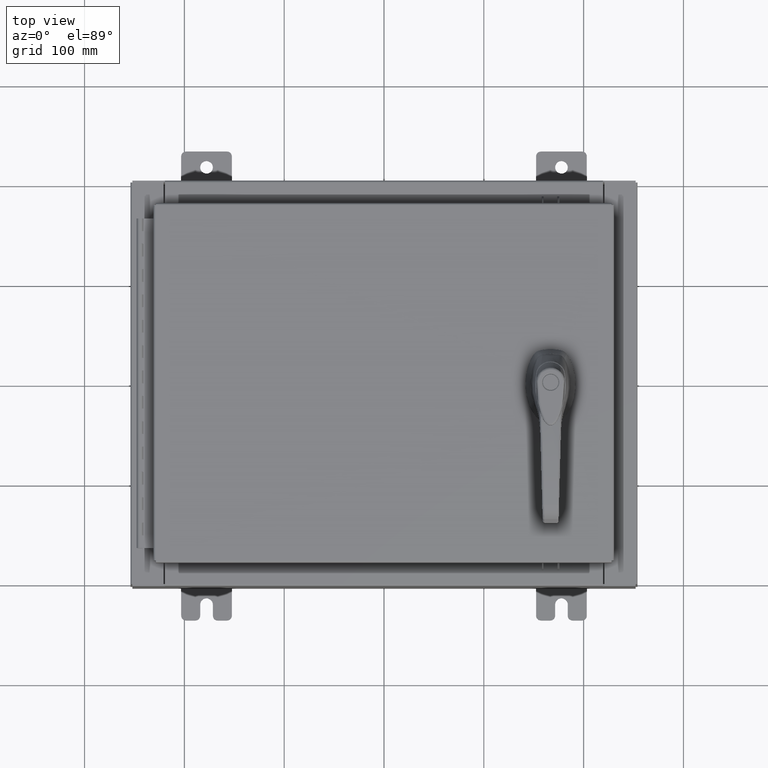
[diagram: clean part render]
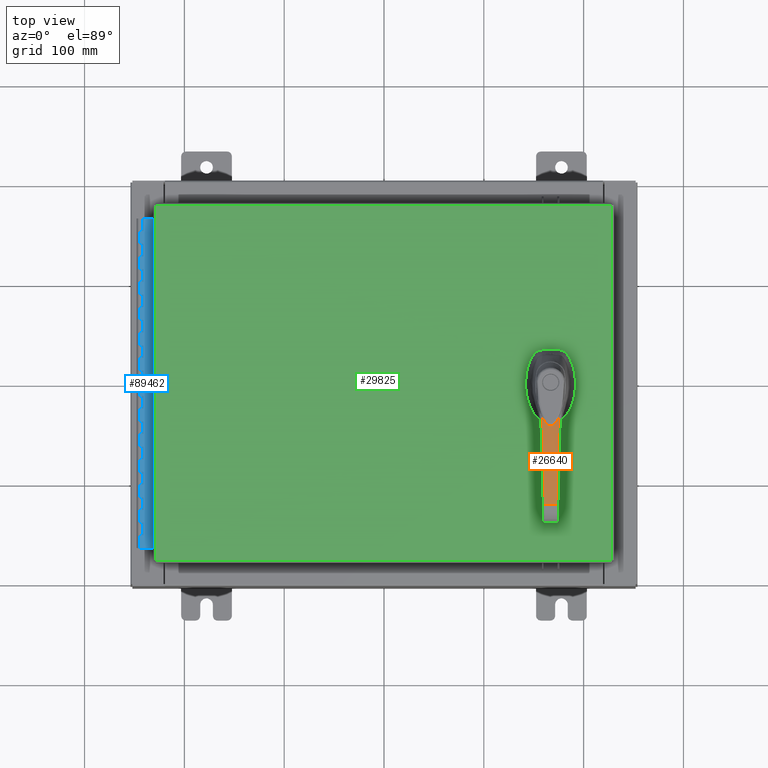
[diagram: same view with three faces highlighted in distinct colors, each labeled with its STEP entity id]
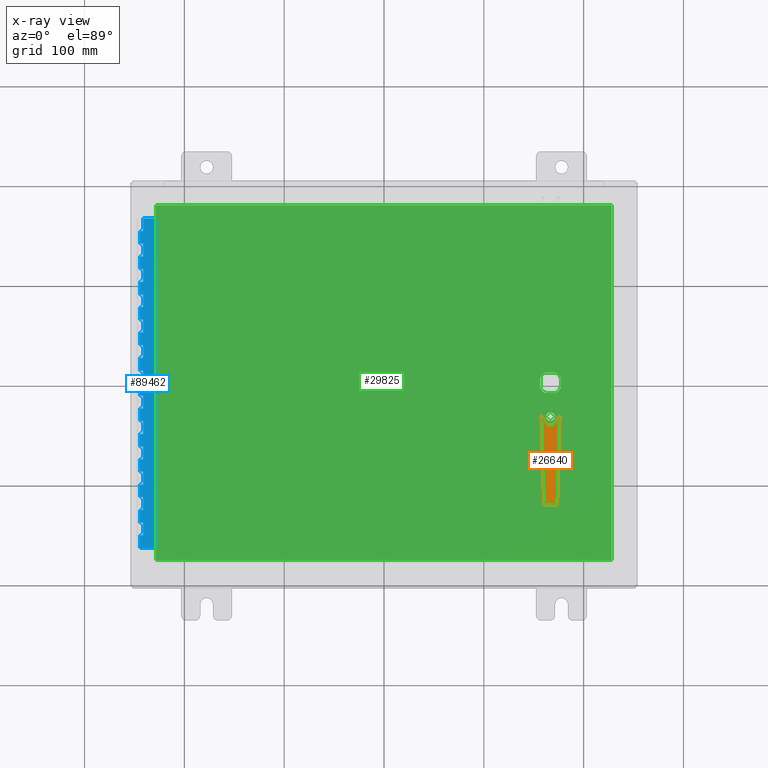
[diagram: x-ray of the same camera — body ghosted, the three highlighted faces saturated]
A machine part, top view with three faces highlighted in distinct colors.
The next image is the same camera in x-ray (body ghosted, the three faces saturated) — at least one of them is partly hidden behind the body in this view.
Their STEP definitions:

[orange] entity #26640 — the highlighted cylindrical surface (partial cylindrical patch) has radius 300 mm, axis along (-1, 0, 0).
#307 = LINE ( 'NONE', #32113, #84695 ) ;
#2828 = CARTESIAN_POINT ( 'NONE',  ( 1.549936709521860800, -0.3396595521461221500, 1.832114909085235300 ) ) ;
#3968 = CARTESIAN_POINT ( 'NONE',  ( 3.354255696629973000, 0.2927274858646592400, 1.939252233246037600 ) ) ;
#4312 = CARTESIAN_POINT ( 'NONE',  ( 1.962192344927163400, 0.3289308373534590700, 1.881644855761424700 ) ) ;
#5844 = CARTESIAN_POINT ( 'NONE',  ( 1.456517634884649400, 0.2752119614751078500, 1.818981777874292700 ) ) ;
#6196 = CARTESIAN_POINT ( 'NONE',  ( 1.609689720394137200, 0.1588428430745516000, 1.840131652460306400 ) ) ;
#6535 = CARTESIAN_POINT ( 'NONE',  ( 1.665449941461016900, 0.07307405170699375600, 1.847325382728704800 ) ) ;
#6874 = CARTESIAN_POINT ( 'NONE',  ( 1.667452722112527900, -0.06791437558086768600, 1.847578869016391200 ) ) ;
#7226 = CARTESIAN_POINT ( 'NONE',  ( 1.605775901944861400, -0.1635624813666050300, 1.839624697243178200 ) ) ;
#7582 = CARTESIAN_POINT ( 'NONE',  ( 1.450862142650996700, -0.2781988563434895100, 1.818152528769768600 ) ) ;
#10137 = ORIENTED_EDGE ( 'NONE', *, *, #102932, .T. ) ;
#10775 = CARTESIAN_POINT ( 'NONE',  ( 1.285167405151900200, -0.3546133440856402700, 1.792860362220502600 ) ) ;
#10920 = B_SPLINE_CURVE_WITH_KNOTS ( 'NONE', 3,
 ( #14469, #22689, #47440, #104619 ),
 .UNSPECIFIED., .F., .F.,
 ( 4, 4 ),
 ( 0.0000000000000000000, 1.000000000000000000 ),
 .UNSPECIFIED. ) ;
#11436 = EDGE_CURVE ( 'NONE', #23765, #92155, #22117, .T. ) ;
#12139 = CARTESIAN_POINT ( 'NONE',  ( 3.255921162986638300, 0.2952847344197944700, 1.940502775483815600 ) ) ;
#12519 = CARTESIAN_POINT ( 'NONE',  ( 1.638260262526217000, 0.3373621368790621900, 1.844188585699163800 ) ) ;
#13694 = CARTESIAN_POINT ( 'NONE',  ( 1.285167403707585300, 0.3546133445978453800, 1.792860362760508000 ) ) ;
#14053 = CARTESIAN_POINT ( 'NONE',  ( 1.500882007459669400, 0.2481468865976230200, 1.825310919166957200 ) ) ;
#14383 = AXIS2_PLACEMENT_3D ( 'NONE', #85575, #101667, #93811 ) ;
#14395 = CARTESIAN_POINT ( 'NONE',  ( 1.627642221730817300, 0.1372262118340457400, 1.842474734026384500 ) ) ;
#14469 = CARTESIAN_POINT ( 'NONE',  ( 1.549936709521860800, -0.3396595521461221500, 1.832114909085235300 ) ) ;
#14751 = CARTESIAN_POINT ( 'NONE',  ( 1.666720180148481200, 0.06983946041972280400, 1.847486187034457700 ) ) ;
#15108 = CARTESIAN_POINT ( 'NONE',  ( 1.662946339963039100, -0.07969119123599187300, 1.847008659323601900 ) ) ;
#15463 = CARTESIAN_POINT ( 'NONE',  ( 1.567082441918983000, -0.1995284965863674500, 1.834452944274883600 ) ) ;
#15784 = CARTESIAN_POINT ( 'NONE',  ( 1.422341089794108900, -0.2934036132516507100, 1.813963700160028600 ) ) ;
#16957 = CARTESIAN_POINT ( 'NONE',  ( 4.805199877897496900, 0.2549857665720962600, 1.824333981427789200 ) ) ;
#18877 = CARTESIAN_POINT ( 'NONE',  ( 4.266296091497493700, -0.2690033809075386100, 1.900627307953364700 ) ) ;
#20367 = CARTESIAN_POINT ( 'NONE',  ( 3.197470930382345000, 0.2968049740498418500, 1.940850218433535700 ) ) ;
#21914 = CARTESIAN_POINT ( 'NONE',  ( 1.377774985390543000, 0.3154086851259959000, 1.807295794097437900 ) ) ;
#22117 = B_SPLINE_CURVE_WITH_KNOTS ( 'NONE', 3,
 ( #13694, #87033, #102430, #70935, #21914, #79170, #30150, #87369, #38441, #95622, #46640, #103829, #54877, #5844, #63075, #14053, #71302, #22244, #79505, #30531, #87731, #38780, #95963, #46999, #104175, #55236, #6196, #63429, #14395, #71661, #22607, #79844, #30878, #88083, #39128, #96309, #47360, #104545, #55568, #6535, #63789, #14751, #71997, #22963, #80204, #31217, #88445, #39479, #96668, #47717, #104890, #55917, #6874, #64144, #15108, #72344, #23309, #80558, #31570, #88782, #39832, #97026, #48050, #105231, #56273, #7226, #64480, #15463, #72712, #23659, #80904, #31932, #89136, #40172, #97377, #48422, #105570, #56619, #7582, #64828, #15784, #73054, #24027, #81234, #32262, #89493, #40535, #97699, #48775 ),
 .UNSPECIFIED., .F., .F.,
 ( 4, 2, 1, 1, 1, 1, 1, 2, 2, 2, 1, 1, 1, 1, 1, 2, 2, 2, 1, 1, 1, 1, 1, 2, 2, 2, 1, 1, 1, 2, 2, 2, 2, 1, 1, 1, 2, 2, 2, 1, 1, 1, 1, 2, 2, 2, 1, 1, 1, 1, 1, 2, 2, 2, 1, 1, 1, 1, 1, 2, 2, 4 ),
 ( 0.0000000000000000000, 0.06249999999996815000, 0.09374999999995251000, 0.1093749999999447100, 0.1171874999999410500, 0.1210937499999395100, 0.1230468749999387300, 0.1240234374999383100, 0.1249999999999378800, 0.1874999999999314700, 0.2187499999999286100, 0.2343749999999275300, 0.2421874999999269200, 0.2460937499999266700, 0.2480468749999268100, 0.2490234374999269200, 0.2499999999999270000, 0.3124999999999368800, 0.3437499999999417700, 0.3593749999999442700, 0.3671874999999457700, 0.3710937499999464900, 0.3730468749999466000, 0.3740234374999464300, 0.3749999999999462700, 0.4062499999999482600, 0.4218749999999491500, 0.4296874999999496000, 0.4335937499999499800, 0.4355468749999501500, 0.4374999999999503200, 0.4999999999999544800, 0.5312499999999565900, 0.5468749999999577000, 0.5546874999999581400, 0.5585937499999582600, 0.5605468749999583700, 0.5624999999999584800, 0.5937499999999634700, 0.6093749999999660300, 0.6171874999999673600, 0.6210937499999680300, 0.6230468749999683600, 0.6240234374999685800, 0.6249999999999686900, 0.6874999999999671400, 0.7187499999999663600, 0.7343749999999660300, 0.7421874999999658100, 0.7460937499999656900, 0.7480468749999656900, 0.7490234374999654700, 0.7499999999999651400, 0.8124999999999749100, 0.8437499999999793500, 0.8593749999999812400, 0.8671874999999823500, 0.8710937499999827900, 0.8730468749999826800, 0.8740234374999822400, 0.8749999999999819000, 1.000000000000000000 ),
 .UNSPECIFIED. ) ;
#22244 = CARTESIAN_POINT ( 'NONE',  ( 1.524578228761914300, 0.2319618882066612200, 1.828620816553894600 ) ) ;
#22607 = CARTESIAN_POINT ( 'NONE',  ( 1.631777938687829300, 0.1317797834924218400, 1.843011216588306100 ) ) ;
#22689 = CARTESIAN_POINT ( 'NONE',  ( 1.461149604711533500, -0.3419711910575410900, 1.819977865742856000 ) ) ;
#22963 = CARTESIAN_POINT ( 'NONE',  ( 1.675872596846181600, 0.04566907200707062700, 1.848644063507531400 ) ) ;
#23309 = CARTESIAN_POINT ( 'NONE',  ( 1.649525308882289200, -0.1053112417757812200, 1.845297665867063200 ) ) ;
#23659 = CARTESIAN_POINT ( 'NONE',  ( 1.540911026017887300, -0.2200747778046515900, 1.830878084273666500 ) ) ;
#23765 = VERTEX_POINT ( 'NONE', #70413 ) ;
#23970 = CARTESIAN_POINT ( 'NONE',  ( 1.461149604711800700, 0.3419711910575385400, 1.819977865742893800 ) ) ;
#24027 = CARTESIAN_POINT ( 'NONE',  ( 1.415001884902496600, -0.2971666495078719200, 1.812875826676418400 ) ) ;
#26640 = ADVANCED_FACE ( 'NONE', ( #68636 ), #46935, .T. ) ;
#27077 = B_SPLINE_CURVE_WITH_KNOTS ( 'NONE', 3,
 ( #67881, #18877, #92539, #43611, #100778, #51819, #2828 ),
 .UNSPECIFIED., .F., .F.,
 ( 4, 3, 4 ),
 ( 0.0000000000000000000, 0.4999999999999983900, 1.000000000000000000 ),
 .UNSPECIFIED. ) ;
#27535 = CARTESIAN_POINT ( 'NONE',  ( 4.713819558154678900, 0.2573626924901488100, 1.837270814955571000 ) ) ;
#28257 = CARTESIAN_POINT ( 'NONE',  ( 4.384581782162134000, 0.2659316760357968200, 1.876757077655745200 ) ) ;
#28594 = CARTESIAN_POINT ( 'NONE',  ( 3.183455179332785900, 0.2971695341875298400, 1.940896711539991800 ) ) ;
#29375 = VERTEX_POINT ( 'NONE', #73608 ) ;
#30150 = CARTESIAN_POINT ( 'NONE',  ( 1.403971242061131700, 0.3027154104630296300, 1.811233171745011900 ) ) ;
#30531 = CARTESIAN_POINT ( 'NONE',  ( 1.530290378760440900, 0.2278771327639652900, 1.829412508182425700 ) ) ;
#30695 = ORIENTED_EDGE ( 'NONE', *, *, #11436, .T. ) ;
#30878 = CARTESIAN_POINT ( 'NONE',  ( 1.632741932373680700, 0.1304805322846297500, 1.843136084596468200 ) ) ;
#31217 = CARTESIAN_POINT ( 'NONE',  ( 1.680095335233368100, -0.01197136183687142300, 1.849171087712740500 ) ) ;
#31570 = CARTESIAN_POINT ( 'NONE',  ( 1.638941990221857400, -0.1218315539769565900, 1.843937560668217300 ) ) ;
#31932 = CARTESIAN_POINT ( 'NONE',  ( 1.534019329573112600, -0.2251692678404813300, 1.829928034573026000 ) ) ;
#32113 = CARTESIAN_POINT ( 'NONE',  ( 4.805199877897495100, 6.099088612688646500, 1.824333981427783700 ) ) ;
#32262 = CARTESIAN_POINT ( 'NONE',  ( 1.413242188827258200, -0.2980603697912257400, 1.812614391285411100 ) ) ;
#32696 = VERTEX_POINT ( 'NONE', #16957 ) ;
#36299 = B_SPLINE_CURVE_WITH_KNOTS ( 'NONE', 3,
 ( #84769, #27535, #77268, #28257, #85473, #36543, #93720, #44762, #101933, #52989, #3968, #61206, #12139, #69388, #20367, #77624, #28594, #85832, #36905, #94062, #45114, #102294, #53345, #4312, #61563, #12519, #69745 ),
 .UNSPECIFIED., .F., .F.,
 ( 4, 2, 2, 2, 2, 2, 1, 1, 1, 2, 2, 2, 2, 2, 4 ),
 ( 0.0000000000000000000, 0.1250000000000066100, 0.2500000000000132100, 0.3750000000000198200, 0.4375000000000230900, 0.4687500000000247600, 0.4843750000000258100, 0.4921875000000263700, 0.4960937500000263700, 0.4980468750000264200, 0.5000000000000264200, 0.6250000000000197600, 0.7500000000000132100, 0.8750000000000065500, 1.000000000000000000 ),
 .UNSPECIFIED. ) ;
#36543 = CARTESIAN_POINT ( 'NONE',  ( 3.988872018762663600, 0.2762265065312570800, 1.911874702511218400 ) ) ;
#36905 = CARTESIAN_POINT ( 'NONE',  ( 2.994844391632358200, 0.3020755544132438500, 1.941348543382791100 ) ) ;
#38441 = CARTESIAN_POINT ( 'NONE',  ( 1.410378708594597600, 0.2995076315425622100, 1.812188464822335600 ) ) ;
#38780 = CARTESIAN_POINT ( 'NONE',  ( 1.531637965723847300, 0.2269023104898896000, 1.829598928321424200 ) ) ;
#39128 = CARTESIAN_POINT ( 'NONE',  ( 1.640565656399495000, 0.1198494022903250600, 1.844149003382669500 ) ) ;
#39479 = CARTESIAN_POINT ( 'NONE',  ( 1.675677567251034000, -0.04071549074534085200, 1.848616337587193300 ) ) ;
#39832 = CARTESIAN_POINT ( 'NONE',  ( 1.634216720233409200, -0.1284710039474759900, 1.843326990127290800 ) ) ;
#40172 = CARTESIAN_POINT ( 'NONE',  ( 1.532357968586527600, -0.2263797702776735600, 1.829698477823363100 ) ) ;
#40535 = CARTESIAN_POINT ( 'NONE',  ( 1.373760058113485000, -0.3180463064242594600, 1.806743859184427100 ) ) ;
#41850 = CARTESIAN_POINT ( 'NONE',  ( 4.805199877897497800, -0.2549857665720929900, 1.824333981427788100 ) ) ;
#43611 = CARTESIAN_POINT ( 'NONE',  ( 3.177837644293160400, -0.2973156531871400900, 1.940911141800460300 ) ) ;
#44762 = CARTESIAN_POINT ( 'NONE',  ( 3.605464906671495700, 0.2861957975426005500, 1.932408694108102900 ) ) ;
#45114 = CARTESIAN_POINT ( 'NONE',  ( 2.504789629931729600, 0.3148162043671317000, 1.924408988684542400 ) ) ;
#46640 = CARTESIAN_POINT ( 'NONE',  ( 1.411895976838739800, 0.2987418508005067500, 1.812414227103907000 ) ) ;
#46935 = CYLINDRICAL_SURFACE ( 'NONE', #14383, 11.81102362204724300 ) ;
#46999 = CARTESIAN_POINT ( 'NONE',  ( 1.553573932691922000, 0.2109698468301475500, 1.832631472685386300 ) ) ;
#47360 = CARTESIAN_POINT ( 'NONE',  ( 1.655649401556312400, 0.09432184503515754500, 1.846080186316502600 ) ) ;
#47440 = CARTESIAN_POINT ( 'NONE',  ( 1.372892883534213100, -0.3469424119739034600, 1.806884306011910200 ) ) ;
#47717 = CARTESIAN_POINT ( 'NONE',  ( 1.670501837927473600, -0.05933737364028956300, 1.847964213049003900 ) ) ;
#48050 = CARTESIAN_POINT ( 'NONE',  ( 1.633059957810182300, -0.1300495619729927800, 1.843177265309141600 ) ) ;
#48422 = CARTESIAN_POINT ( 'NONE',  ( 1.514556654445395700, -0.2392854525976159100, 1.827236800739576500 ) ) ;
#48775 = CARTESIAN_POINT ( 'NONE',  ( 1.285167405151900200, -0.3546133440856402700, 1.792860362220502600 ) ) ;
#51819 = CARTESIAN_POINT ( 'NONE',  ( 2.089199057867319200, -0.3256326111308615000, 1.905831137458305200 ) ) ;
#52989 = CARTESIAN_POINT ( 'NONE',  ( 3.397158093014658800, 0.2916119047857253500, 1.938425827258925000 ) ) ;
#53345 = CARTESIAN_POINT ( 'NONE',  ( 2.085957004588871100, 0.3257099898517546400, 1.893740539790302400 ) ) ;
#54261 = EDGE_CURVE ( 'NONE', #97177, #98284, #27077, .T. ) ;
#54877 = CARTESIAN_POINT ( 'NONE',  ( 1.435195623636535500, 0.2869488096781799800, 1.815878705668508000 ) ) ;
#55236 = CARTESIAN_POINT ( 'NONE',  ( 1.597928116298629200, 0.1710148495156896000, 1.838578136496558100 ) ) ;
#55568 = CARTESIAN_POINT ( 'NONE',  ( 1.663589786831885200, 0.07759667621418467300, 1.847089689351789000 ) ) ;
#55917 = CARTESIAN_POINT ( 'NONE',  ( 1.667982851357451300, -0.06648546394590973400, 1.847645912295601500 ) ) ;
#56273 = CARTESIAN_POINT ( 'NONE',  ( 1.620322453436930900, -0.1472583990823319600, 1.841527598334620000 ) ) ;
#56619 = CARTESIAN_POINT ( 'NONE',  ( 1.466267725725023800, -0.2693476378157122500, 1.820376805866247300 ) ) ;
#60327 = EDGE_LOOP ( 'NONE', ( #91706, #10137, #69016, #30695, #65124, #87207 ) ) ;
#61206 = CARTESIAN_POINT ( 'NONE',  ( 3.288871157594097200, 0.2944278238416510000, 1.940143925120731700 ) ) ;
#61563 = CARTESIAN_POINT ( 'NONE',  ( 1.738344976384683900, 0.3347569108671127900, 1.856868895625623600 ) ) ;
#61932 = EDGE_CURVE ( 'NONE', #97177, #32696, #307, .T. ) ;
#63075 = CARTESIAN_POINT ( 'NONE',  ( 1.486437698170242500, 0.2572311655016012400, 1.823263412956679800 ) ) ;
#63429 = CARTESIAN_POINT ( 'NONE',  ( 1.621908635050497000, 0.1444618146255014500, 1.841728913890022800 ) ) ;
#63789 = CARTESIAN_POINT ( 'NONE',  ( 1.666216210166185900, 0.07113358953773985000, 1.847422397405533500 ) ) ;
#64144 = CARTESIAN_POINT ( 'NONE',  ( 1.667157571439228600, -0.06869618003175809200, 1.847541531571267300 ) ) ;
#64480 = CARTESIAN_POINT ( 'NONE',  ( 1.580548218858697200, -0.1876082219816706000, 1.836261751761620200 ) ) ;
#64773 = CARTESIAN_POINT ( 'NONE',  ( 1.372892883534753400, 0.3469424119738771500, 1.806884306011991000 ) ) ;
#64828 = CARTESIAN_POINT ( 'NONE',  ( 1.431996714045676000, -0.2883624919504019200, 1.815388736092747000 ) ) ;
#65041 = EDGE_CURVE ( 'NONE', #98284, #92155, #10920, .T. ) ;
#65124 = ORIENTED_EDGE ( 'NONE', *, *, #65041, .F. ) ;
#67881 = CARTESIAN_POINT ( 'NONE',  ( 4.805199877897497800, -0.2549857665720929900, 1.824333981427788100 ) ) ;
#68528 = CARTESIAN_POINT ( 'NONE',  ( 1.549936709521860800, -0.3396595521461221500, 1.832114909085235300 ) ) ;
#68636 = FACE_OUTER_BOUND ( 'NONE', #60327, .T. ) ;
#69016 = ORIENTED_EDGE ( 'NONE', *, *, #97587, .F. ) ;
#69388 = CARTESIAN_POINT ( 'NONE',  ( 3.217029300581202300, 0.2962962612095122500, 1.940761667420589200 ) ) ;
#69745 = CARTESIAN_POINT ( 'NONE',  ( 1.549936709521849700, 0.3396595521461303600, 1.832114909085235300 ) ) ;
#70413 = CARTESIAN_POINT ( 'NONE',  ( 1.285167403707585300, 0.3546133445978453800, 1.792860362760508000 ) ) ;
#70935 = CARTESIAN_POINT ( 'NONE',  ( 1.362201980543991300, 0.3225149545132413600, 1.804919336107086500 ) ) ;
#71302 = CARTESIAN_POINT ( 'NONE',  ( 1.516830157375135300, 0.2373842696045056500, 1.827543091604346900 ) ) ;
#71661 = CARTESIAN_POINT ( 'NONE',  ( 1.630415031557484800, 0.1335971382965852300, 1.842834560165926400 ) ) ;
#71997 = CARTESIAN_POINT ( 'NONE',  ( 1.666943250047650200, 0.06925946003727359600, 1.847514415332581800 ) ) ;
#72344 = CARTESIAN_POINT ( 'NONE',  ( 1.658104608024421300, -0.08997679606066867600, 1.846394063252969600 ) ) ;
#72712 = CARTESIAN_POINT ( 'NONE',  ( 1.549882932702344200, -0.2132559411452173100, 1.832109519501141400 ) ) ;
#73054 = CARTESIAN_POINT ( 'NONE',  ( 1.417457569571613400, -0.2959139997767235600, 1.813240278477134900 ) ) ;
#73608 = CARTESIAN_POINT ( 'NONE',  ( 1.549936709521849700, 0.3396595521461303600, 1.832114909085235300 ) ) ;
#77268 = CARTESIAN_POINT ( 'NONE',  ( 4.611449591161986400, 0.2600272595664968000, 1.850686182147238200 ) ) ;
#77624 = CARTESIAN_POINT ( 'NONE',  ( 3.189064689842291900, 0.2970236258625841300, 1.940879303231489700 ) ) ;
#79170 = CARTESIAN_POINT ( 'NONE',  ( 1.395339831983441600, 0.3069710070873791200, 1.809941467447426800 ) ) ;
#79505 = CARTESIAN_POINT ( 'NONE',  ( 1.528395749153942800, 0.2292404292824175000, 1.829150185326987400 ) ) ;
#79844 = CARTESIAN_POINT ( 'NONE',  ( 1.632357006304437000, 0.1310003132830446800, 1.843086230139446400 ) ) ;
#80204 = CARTESIAN_POINT ( 'NONE',  ( 1.680175953285407000, 0.02266160196180858800, 1.849181196457978100 ) ) ;
#80558 = CARTESIAN_POINT ( 'NONE',  ( 1.644906487703457200, -0.1129549742528619100, 1.844705813593933800 ) ) ;
#80904 = CARTESIAN_POINT ( 'NONE',  ( 1.536332061329278800, -0.2234729747293710500, 1.830247252460746300 ) ) ;
#81179 = CARTESIAN_POINT ( 'NONE',  ( 1.549936709521849700, 0.3396595521461303600, 1.832114909085235300 ) ) ;
#81234 = CARTESIAN_POINT ( 'NONE',  ( 1.413946465048467000, -0.2977029543502094900, 1.812719044079245100 ) ) ;
#81532 = B_SPLINE_CURVE_WITH_KNOTS ( 'NONE', 3,
 ( #96967, #64773, #23970, #81179 ),
 .UNSPECIFIED., .F., .F.,
 ( 4, 4 ),
 ( 0.0000000000000000000, 1.000000000000000000 ),
 .UNSPECIFIED. ) ;
#84695 = VECTOR ( 'NONE', #89324, 39.37007874015748100 ) ;
#84769 = CARTESIAN_POINT ( 'NONE',  ( 4.805199877897496900, 0.2549857665720962600, 1.824333981427789200 ) ) ;
#85473 = CARTESIAN_POINT ( 'NONE',  ( 4.260082169442985600, 0.2691715254287488400, 1.889412627025912600 ) ) ;
#85575 = CARTESIAN_POINT ( 'NONE',  ( 3.149606299212600400, 0.3588687022006252200, -9.870078740157481400 ) ) ;
#85832 = CARTESIAN_POINT ( 'NONE',  ( 3.180696913865969300, 0.2972412797304944700, 1.940904307400735100 ) ) ;
#87033 = CARTESIAN_POINT ( 'NONE',  ( 1.308225132359822000, 0.3456984148396887700, 1.796546292019673100 ) ) ;
#87207 = ORIENTED_EDGE ( 'NONE', *, *, #54261, .F. ) ;
#87369 = CARTESIAN_POINT ( 'NONE',  ( 1.408249181654886300, 0.3005784227495948400, 1.811871312986568900 ) ) ;
#87731 = CARTESIAN_POINT ( 'NONE',  ( 1.531099334706964100, 0.2272923127439864200, 1.829524427485562000 ) ) ;
#88083 = CARTESIAN_POINT ( 'NONE',  ( 1.632892665029209700, 0.1302765233638334700, 1.843155604267183300 ) ) ;
#88445 = CARTESIAN_POINT ( 'NONE',  ( 1.678980772138702900, -0.02348651453882368700, 1.849031485695043800 ) ) ;
#88782 = CARTESIAN_POINT ( 'NONE',  ( 1.635815798552256600, -0.1262595667975459600, 1.843533802100506300 ) ) ;
#89136 = CARTESIAN_POINT ( 'NONE',  ( 1.533023177175520900, -0.2258956494556895500, 1.829790409659591400 ) ) ;
#89324 = DIRECTION ( 'NONE',  ( -5.515784609652929700E-033, 1.000000000000000000, -0.0000000000000000000 ) ) ;
#89493 = CARTESIAN_POINT ( 'NONE',  ( 1.412839862362145600, -0.2982642543102345100, 1.812554586203142200 ) ) ;
#91706 = ORIENTED_EDGE ( 'NONE', *, *, #61932, .T. ) ;
#92155 = VERTEX_POINT ( 'NONE', #10775 ) ;
#92539 = CARTESIAN_POINT ( 'NONE',  ( 3.722113557932751800, -0.2831583025764904400, 1.939610180467789000 ) ) ;
#93720 = CARTESIAN_POINT ( 'NONE',  ( 3.842159367048327400, 0.2800416382408131800, 1.921681097564914600 ) ) ;
#93811 = DIRECTION ( 'NONE',  ( 0.0000000000000000000, 0.0000000000000000000, -1.000000000000000000 ) ) ;
#94062 = CARTESIAN_POINT ( 'NONE',  ( 2.823583190880747400, 0.3065276448944580500, 1.937522127742024900 ) ) ;
#95622 = CARTESIAN_POINT ( 'NONE',  ( 1.411289339368788000, 0.2990482287359093600, 1.812323976823124300 ) ) ;
#95963 = CARTESIAN_POINT ( 'NONE',  ( 1.531841238162610500, 0.2267549729690712100, 1.829627039123025200 ) ) ;
#96309 = CARTESIAN_POINT ( 'NONE',  ( 1.647126988818380200, 0.1096758325861663800, 1.844991371880547100 ) ) ;
#96668 = CARTESIAN_POINT ( 'NONE',  ( 1.673618130089375500, -0.04931904063699649900, 1.848357284676164200 ) ) ;
#96967 = CARTESIAN_POINT ( 'NONE',  ( 1.285167403707585300, 0.3546133445978453800, 1.792860362760508000 ) ) ;
#97026 = CARTESIAN_POINT ( 'NONE',  ( 1.633523690778703000, -0.1294182121702250100, 1.843237296713768700 ) ) ;
#97177 = VERTEX_POINT ( 'NONE', #41850 ) ;
#97377 = CARTESIAN_POINT ( 'NONE',  ( 1.531958825236969800, -0.2266696006880474800, 1.829643296008418600 ) ) ;
#97587 = EDGE_CURVE ( 'NONE', #23765, #29375, #81532, .T. ) ;
#97699 = CARTESIAN_POINT ( 'NONE',  ( 1.331296485917116400, -0.3367782127205200000, 1.800234481340103700 ) ) ;
#98284 = VERTEX_POINT ( 'NONE', #68528 ) ;
#100778 = CARTESIAN_POINT ( 'NONE',  ( 2.633561730653564600, -0.3114730037977903000, 1.942212103133131400 ) ) ;
#101667 = DIRECTION ( 'NONE',  ( 5.515784609652929700E-033, -1.000000000000000000, 0.0000000000000000000 ) ) ;
#101933 = CARTESIAN_POINT ( 'NONE',  ( 3.523797029380384000, 0.2883190942661051400, 1.935318005950529500 ) ) ;
#102294 = CARTESIAN_POINT ( 'NONE',  ( 2.357254433555596900, 0.3186526733585909300, 1.915122674931469600 ) ) ;
#102430 = CARTESIAN_POINT ( 'NONE',  ( 1.330367034998300800, 0.3365594585218309500, 1.800015887332627700 ) ) ;
#102932 = EDGE_CURVE ( 'NONE', #32696, #29375, #36299, .T. ) ;
#103829 = CARTESIAN_POINT ( 'NONE',  ( 1.412147350919595200, 0.2986147853169418000, 1.812451616407726700 ) ) ;
#104175 = CARTESIAN_POINT ( 'NONE',  ( 1.572688659303555600, 0.1951527432348536500, 1.835214844775206400 ) ) ;
#104545 = CARTESIAN_POINT ( 'NONE',  ( 1.659580715408767400, 0.08662144301096037800, 1.846580881106998800 ) ) ;
#104619 = CARTESIAN_POINT ( 'NONE',  ( 1.285167405151900200, -0.3546133440856402700, 1.792860362220502600 ) ) ;
#104890 = CARTESIAN_POINT ( 'NONE',  ( 1.668765304187870900, -0.06434175467436024900, 1.847744838486964600 ) ) ;
#105231 = CARTESIAN_POINT ( 'NONE',  ( 1.632785392386059800, -0.1304217021505197600, 1.843141712585298000 ) ) ;
#105570 = CARTESIAN_POINT ( 'NONE',  ( 1.496057899066958900, -0.2514591596072116000, 1.824640546464770400 ) ) ;

[blue] entity #89462 — the highlighted planar face has unit normal (-0, -0, 1).
#74 = CARTESIAN_POINT ( 'NONE',  ( -0.6869999999999982800, 0.5504999999999997700, -11.99999999999999800 ) ) ;
#80 = LINE ( 'NONE', #54576, #40999 ) ;
#132 = VERTEX_POINT ( 'NONE', #14195 ) ;
#258 = CARTESIAN_POINT ( 'NONE',  ( -0.6869999999999978300, 0.6754999999999996600, -0.5000000000000000000 ) ) ;
#606 = EDGE_CURVE ( 'NONE', #31925, #15862, #86634, .T. ) ;
#1158 = VECTOR ( 'NONE', #58295, 39.37007874015748100 ) ;
#1427 = CARTESIAN_POINT ( 'NONE',  ( -0.6869999999999978300, 0.6754999999999996600, -2.500000000000000000 ) ) ;
#1826 = LINE ( 'NONE', #100708, #18385 ) ;
#2005 = EDGE_CURVE ( 'NONE', #56373, #58720, #46856, .T. ) ;
#2020 = VERTEX_POINT ( 'NONE', #38804 ) ;
#2614 = CARTESIAN_POINT ( 'NONE',  ( -0.6869999999999982800, 0.5504999999999997700, -2.500000000000000000 ) ) ;
#2635 = VERTEX_POINT ( 'NONE', #42186 ) ;
#2833 = VECTOR ( 'NONE', #76977, 39.37007874015748100 ) ;
#3336 = EDGE_CURVE ( 'NONE', #75249, #13981, #77401, .T. ) ;
#3695 = LINE ( 'NONE', #82951, #1158 ) ;
#3832 = CARTESIAN_POINT ( 'NONE',  ( -0.6869999999999982800, 0.5504999999999997700, -12.49999999999999800 ) ) ;
#3919 = VERTEX_POINT ( 'NONE', #73516 ) ;
#3935 = VECTOR ( 'NONE', #59649, 39.37007874015748100 ) ;
#4367 = CARTESIAN_POINT ( 'NONE',  ( -0.6869999999999982800, 0.5504999999999997700, -4.500000000000000000 ) ) ;
#4433 = CARTESIAN_POINT ( 'NONE',  ( -0.6869999999999973900, 0.8004999999999995500, -4.000000000000000000 ) ) ;
#4503 = CARTESIAN_POINT ( 'NONE',  ( -0.6869999999999978300, 0.6754999999999996600, -13.00000000000000000 ) ) ;
#4774 = VECTOR ( 'NONE', #67532, 39.37007874015748100 ) ;
#4907 = EDGE_CURVE ( 'NONE', #105360, #47042, #54245, .T. ) ;
#4916 = VECTOR ( 'NONE', #15634, 39.37007874015748100 ) ;
#5338 = VECTOR ( 'NONE', #61797, 39.37007874015748100 ) ;
#5443 = DIRECTION ( 'NONE',  ( 0.0000000000000000000, -0.0000000000000000000, -1.000000000000000000 ) ) ;
#5873 = VECTOR ( 'NONE', #61683, 39.37007874015748100 ) ;
#6012 = DIRECTION ( 'NONE',  ( 0.0000000000000000000, 0.0000000000000000000, 1.000000000000000000 ) ) ;
#6283 = VERTEX_POINT ( 'NONE', #80926 ) ;
#6450 = VERTEX_POINT ( 'NONE', #33716 ) ;
#6548 = LINE ( 'NONE', #71143, #85879 ) ;
#6832 = VERTEX_POINT ( 'NONE', #100932 ) ;
#6875 = EDGE_CURVE ( 'NONE', #48312, #90710, #48921, .T. ) ;
#6996 = VERTEX_POINT ( 'NONE', #4367 ) ;
#7316 = CARTESIAN_POINT ( 'NONE',  ( -0.6869999999999978300, 0.6754999999999996600, -13.00000000000000000 ) ) ;
#7380 = DIRECTION ( 'NONE',  ( 3.389037039080723100E-015, 1.000000000000000000, -0.0000000000000000000 ) ) ;
#7475 = CARTESIAN_POINT ( 'NONE',  ( -0.6869999999999982800, 0.5504999999999997700, -11.50000000000000000 ) ) ;
#7684 = EDGE_CURVE ( 'NONE', #35477, #13981, #102553, .T. ) ;
#8017 = VERTEX_POINT ( 'NONE', #57345 ) ;
#8101 = CARTESIAN_POINT ( 'NONE',  ( -0.6869999999999973900, 0.8004999999999995500, -2.500000000000000000 ) ) ;
#8117 = CARTESIAN_POINT ( 'NONE',  ( -0.6869999999999978300, 0.6754999999999996600, -7.000000000000000000 ) ) ;
#8266 = LINE ( 'NONE', #90882, #49285 ) ;
#8514 = CARTESIAN_POINT ( 'NONE',  ( -0.6869999999999982800, 0.5504999999999997700, -5.500000000000000000 ) ) ;
#9045 = CARTESIAN_POINT ( 'NONE',  ( -0.6869999999999978300, 0.6754999999999996600, -9.500000000000000000 ) ) ;
#9123 = DIRECTION ( 'NONE',  ( 0.0000000000000000000, 0.0000000000000000000, 1.000000000000000000 ) ) ;
#9526 = VECTOR ( 'NONE', #32644, 39.37007874015748100 ) ;
#9660 = VECTOR ( 'NONE', #32434, 39.37007874015748100 ) ;
#9783 = CARTESIAN_POINT ( 'NONE',  ( -0.6869999999999978300, 0.6754999999999996600, -5.500000000000000000 ) ) ;
#9865 = CARTESIAN_POINT ( 'NONE',  ( -0.6869999999999982800, 0.5504999999999997700, -0.5000000000000000000 ) ) ;
#9954 = CARTESIAN_POINT ( 'NONE',  ( -0.6869999999999982800, 0.5504999999999997700, -9.500000000000000000 ) ) ;
#10226 = ORIENTED_EDGE ( 'NONE', *, *, #11136, .F. ) ;
#10427 = VERTEX_POINT ( 'NONE', #18247 ) ;
#10932 = LINE ( 'NONE', #23549, #54506 ) ;
#10961 = CARTESIAN_POINT ( 'NONE',  ( -0.6869999999999978300, 0.6754999999999996600, -4.500000000000000000 ) ) ;
#11136 = EDGE_CURVE ( 'NONE', #6450, #3919, #75779, .T. ) ;
#11351 = ORIENTED_EDGE ( 'NONE', *, *, #44545, .F. ) ;
#11650 = CARTESIAN_POINT ( 'NONE',  ( -0.6869999999999973900, 0.8004999999999995500, -7.000000000000000000 ) ) ;
#12010 = CARTESIAN_POINT ( 'NONE',  ( -0.6869999999999982800, 0.5504999999999997700, -1.499999999999999800 ) ) ;
#12117 = VECTOR ( 'NONE', #71497, 39.37007874015748100 ) ;
#12265 = VECTOR ( 'NONE', #71498, 39.37007874015748100 ) ;
#12275 = CARTESIAN_POINT ( 'NONE',  ( -0.6869999999999973900, 0.8004999999999995500, -11.99999999999999800 ) ) ;
#12614 = ORIENTED_EDGE ( 'NONE', *, *, #59833, .F. ) ;
#13260 = LINE ( 'NONE', #55862, #54264 ) ;
#13308 = LINE ( 'NONE', #29768, #54297 ) ;
#13619 = VERTEX_POINT ( 'NONE', #14519 ) ;
#13727 = VECTOR ( 'NONE', #48613, 39.37007874015748100 ) ;
#13830 = ORIENTED_EDGE ( 'NONE', *, *, #50056, .T. ) ;
#13857 = LINE ( 'NONE', #8514, #98322 ) ;
#13981 = VERTEX_POINT ( 'NONE', #76715 ) ;
#14070 = ORIENTED_EDGE ( 'NONE', *, *, #75183, .F. ) ;
#14114 = VECTOR ( 'NONE', #91356, 39.37007874015748100 ) ;
#14195 = CARTESIAN_POINT ( 'NONE',  ( -0.6869999999999982800, 0.5504999999999997700, -8.000000000000000000 ) ) ;
#14411 = VECTOR ( 'NONE', #7380, 39.37007874015748100 ) ;
#14519 = CARTESIAN_POINT ( 'NONE',  ( -0.6869999999999982800, 0.5504999999999997700, -6.000000000000000900 ) ) ;
#14860 = VERTEX_POINT ( 'NONE', #74 ) ;
#14898 = CARTESIAN_POINT ( 'NONE',  ( -0.6869999999999978300, 0.6754999999999996600, -4.000000000000000000 ) ) ;
#14943 = DIRECTION ( 'NONE',  ( 0.0000000000000000000, 0.0000000000000000000, 1.000000000000000000 ) ) ;
#15022 = LINE ( 'NONE', #67674, #17576 ) ;
#15200 = EDGE_CURVE ( 'NONE', #6996, #69774, #56215, .T. ) ;
#15222 = VECTOR ( 'NONE', #59696, 39.37007874015748100 ) ;
#15232 = DIRECTION ( 'NONE',  ( 3.389037039080723100E-015, 1.000000000000000000, -0.0000000000000000000 ) ) ;
#15634 = DIRECTION ( 'NONE',  ( 0.0000000000000000000, -0.0000000000000000000, -1.000000000000000000 ) ) ;
#15862 = VERTEX_POINT ( 'NONE', #87152 ) ;
#15909 = EDGE_CURVE ( 'NONE', #93821, #76037, #17670, .T. ) ;
#15932 = CARTESIAN_POINT ( 'NONE',  ( -0.6869999999999982800, 0.5504999999999997700, -1.000000000000000000 ) ) ;
#15959 = EDGE_CURVE ( 'NONE', #68218, #69968, #99575, .T. ) ;
#16163 = VERTEX_POINT ( 'NONE', #258 ) ;
#16265 = LINE ( 'NONE', #8101, #13727 ) ;
#16273 = ORIENTED_EDGE ( 'NONE', *, *, #90436, .F. ) ;
#16323 = VECTOR ( 'NONE', #25798, 39.37007874015748100 ) ;
#16881 = EDGE_CURVE ( 'NONE', #74925, #98395, #15022, .T. ) ;
#16915 = EDGE_CURVE ( 'NONE', #2020, #33263, #77755, .T. ) ;
#16919 = VERTEX_POINT ( 'NONE', #43757 ) ;
#17422 = CARTESIAN_POINT ( 'NONE',  ( -0.6869999999999973900, 0.8004999999999995500, -6.000000000000000900 ) ) ;
#17576 = VECTOR ( 'NONE', #59454, 39.37007874015748100 ) ;
#17670 = LINE ( 'NONE', #87485, #27948 ) ;
#17977 = LINE ( 'NONE', #88952, #99879 ) ;
#18247 = CARTESIAN_POINT ( 'NONE',  ( -0.6869999999999982800, 0.5504999999999997700, -11.00000000000000000 ) ) ;
#18385 = VECTOR ( 'NONE', #18823, 39.37007874015748100 ) ;
#18643 = CARTESIAN_POINT ( 'NONE',  ( -0.6869999999999982800, 0.5504999999999997700, -3.500000000000000000 ) ) ;
#18758 = ORIENTED_EDGE ( 'NONE', *, *, #99648, .F. ) ;
#18823 = DIRECTION ( 'NONE',  ( 0.0000000000000000000, -0.0000000000000000000, -1.000000000000000000 ) ) ;
#18995 = ORIENTED_EDGE ( 'NONE', *, *, #28507, .T. ) ;
#19231 = CARTESIAN_POINT ( 'NONE',  ( -0.6869999999999978300, 0.6754999999999996600, -13.00000000000000000 ) ) ;
#19327 = CARTESIAN_POINT ( 'NONE',  ( -0.6869999999999973900, 0.8004999999999995500, -3.500000000000000000 ) ) ;
#19941 = ORIENTED_EDGE ( 'NONE', *, *, #15909, .F. ) ;
#20334 = EDGE_CURVE ( 'NONE', #33170, #58720, #90355, .T. ) ;
#20488 = EDGE_CURVE ( 'NONE', #83910, #105360, #101860, .T. ) ;
#20641 = EDGE_CURVE ( 'NONE', #3919, #71073, #58360, .T. ) ;
#20891 = DIRECTION ( 'NONE',  ( 0.0000000000000000000, 0.0000000000000000000, 1.000000000000000000 ) ) ;
#20960 = ORIENTED_EDGE ( 'NONE', *, *, #95127, .F. ) ;
#20994 = VERTEX_POINT ( 'NONE', #9865 ) ;
#21034 = CARTESIAN_POINT ( 'NONE',  ( -0.6869999999999973900, 0.8004999999999995500, -10.50000000000000000 ) ) ;
#21579 = CARTESIAN_POINT ( 'NONE',  ( -0.6869999999999978300, 0.6754999999999996600, -13.00000000000000000 ) ) ;
#21732 = ORIENTED_EDGE ( 'NONE', *, *, #20641, .F. ) ;
#21999 = CARTESIAN_POINT ( 'NONE',  ( -0.6870000000000022800, -0.6245000000000003900, -13.00000000000000000 ) ) ;
#22344 = DIRECTION ( 'NONE',  ( 3.369016658928398200E-015, 1.000000000000000000, 0.0000000000000000000 ) ) ;
#22501 = VECTOR ( 'NONE', #85436, 39.37007874015748100 ) ;
#23007 = ORIENTED_EDGE ( 'NONE', *, *, #88854, .F. ) ;
#23549 = CARTESIAN_POINT ( 'NONE',  ( -0.6869999999999982800, 0.5504999999999997700, -11.50000000000000000 ) ) ;
#23813 = EDGE_CURVE ( 'NONE', #85798, #47042, #35734, .T. ) ;
#23904 = VECTOR ( 'NONE', #92930, 39.37007874015748100 ) ;
#24086 = CARTESIAN_POINT ( 'NONE',  ( -0.6869999999999982800, 0.5504999999999997700, -6.499999999999999100 ) ) ;
#24418 = CARTESIAN_POINT ( 'NONE',  ( -0.6869999999999973900, 0.8004999999999995500, -10.00000000000000000 ) ) ;
#25152 = VECTOR ( 'NONE', #76378, 39.37007874015748100 ) ;
#25205 = EDGE_CURVE ( 'NONE', #20994, #96150, #72667, .T. ) ;
#25344 = LINE ( 'NONE', #86828, #47163 ) ;
#25530 = EDGE_CURVE ( 'NONE', #49685, #83910, #16265, .T. ) ;
#25798 = DIRECTION ( 'NONE',  ( -3.389037039080723100E-015, -1.000000000000000000, 0.0000000000000000000 ) ) ;
#26240 = VECTOR ( 'NONE', #79197, 39.37007874015748100 ) ;
#26262 = EDGE_CURVE ( 'NONE', #74925, #2635, #45695, .T. ) ;
#26779 = VECTOR ( 'NONE', #74666, 39.37007874015748100 ) ;
#27298 = ORIENTED_EDGE ( 'NONE', *, *, #52721, .F. ) ;
#27404 = EDGE_CURVE ( 'NONE', #27454, #14860, #10932, .T. ) ;
#27454 = VERTEX_POINT ( 'NONE', #7475 ) ;
#27793 = DIRECTION ( 'NONE',  ( 3.389037039080723100E-015, 1.000000000000000000, -0.0000000000000000000 ) ) ;
#27948 = VECTOR ( 'NONE', #30273, 39.37007874015748100 ) ;
#28045 = EDGE_CURVE ( 'NONE', #49685, #69968, #69782, .T. ) ;
#28499 = ORIENTED_EDGE ( 'NONE', *, *, #105269, .T. ) ;
#28507 = EDGE_CURVE ( 'NONE', #16163, #71073, #8266, .T. ) ;
#29599 = CARTESIAN_POINT ( 'NONE',  ( -0.6869999999999982800, 0.5504999999999997700, -7.000000000000000000 ) ) ;
#29768 = CARTESIAN_POINT ( 'NONE',  ( -0.6869999999999982800, 0.5504999999999997700, -8.500000000000000000 ) ) ;
#30273 = DIRECTION ( 'NONE',  ( -3.389037039080723100E-015, -1.000000000000000000, 0.0000000000000000000 ) ) ;
#30745 = ORIENTED_EDGE ( 'NONE', *, *, #41027, .F. ) ;
#31325 = LINE ( 'NONE', #56464, #69718 ) ;
#31828 = DIRECTION ( 'NONE',  ( 0.0000000000000000000, -0.0000000000000000000, -1.000000000000000000 ) ) ;
#31925 = VERTEX_POINT ( 'NONE', #9783 ) ;
#32384 = CARTESIAN_POINT ( 'NONE',  ( -0.6869999999999978300, 0.6754999999999996600, -9.000000000000000000 ) ) ;
#32434 = DIRECTION ( 'NONE',  ( 3.369016658928398200E-015, 1.000000000000000000, 0.0000000000000000000 ) ) ;
#32570 = EDGE_CURVE ( 'NONE', #87349, #56373, #74410, .T. ) ;
#32644 = DIRECTION ( 'NONE',  ( 3.389037039080723100E-015, 1.000000000000000000, -0.0000000000000000000 ) ) ;
#32759 = ORIENTED_EDGE ( 'NONE', *, *, #96358, .F. ) ;
#33130 = VECTOR ( 'NONE', #6012, 39.37007874015748100 ) ;
#33170 = VERTEX_POINT ( 'NONE', #10961 ) ;
#33263 = VERTEX_POINT ( 'NONE', #12010 ) ;
#33514 = CARTESIAN_POINT ( 'NONE',  ( -0.6869999999999982800, 0.5504999999999997700, -2.999999999999999600 ) ) ;
#33560 = ORIENTED_EDGE ( 'NONE', *, *, #85942, .F. ) ;
#33716 = CARTESIAN_POINT ( 'NONE',  ( -0.6869999999999998300, 0.07549999999999991400, -13.00000000000000000 ) ) ;
#35038 = DIRECTION ( 'NONE',  ( 0.0000000000000000000, 0.0000000000000000000, 1.000000000000000000 ) ) ;
#35169 = ORIENTED_EDGE ( 'NONE', *, *, #52956, .F. ) ;
#35379 = CARTESIAN_POINT ( 'NONE',  ( -0.6869999999999978300, 0.6754999999999996600, 0.0000000000000000000 ) ) ;
#35477 = VERTEX_POINT ( 'NONE', #72646 ) ;
#35720 = EDGE_CURVE ( 'NONE', #56051, #10427, #3695, .T. ) ;
#35725 = CARTESIAN_POINT ( 'NONE',  ( -0.6869999999999978300, 0.6754999999999996600, -3.500000000000000000 ) ) ;
#35734 = LINE ( 'NONE', #104000, #33130 ) ;
#36443 = CARTESIAN_POINT ( 'NONE',  ( -0.6869999999999982800, 0.5504999999999997700, -10.50000000000000000 ) ) ;
#36519 = LINE ( 'NONE', #55071, #12117 ) ;
#36523 = LINE ( 'NONE', #11650, #99153 ) ;
#36891 = ORIENTED_EDGE ( 'NONE', *, *, #39869, .F. ) ;
#37275 = CARTESIAN_POINT ( 'NONE',  ( -0.6869999999999978300, 0.6754999999999996600, -7.499999999999999100 ) ) ;
#37660 = CARTESIAN_POINT ( 'NONE',  ( -0.6869999999999978300, 0.6754999999999996600, -11.00000000000000000 ) ) ;
#38265 = ORIENTED_EDGE ( 'NONE', *, *, #4907, .F. ) ;
#38283 = CARTESIAN_POINT ( 'NONE',  ( -0.6869999999999982800, 0.5504999999999997700, -5.000000000000000000 ) ) ;
#38407 = VERTEX_POINT ( 'NONE', #70826 ) ;
#38482 = CARTESIAN_POINT ( 'NONE',  ( -0.6869999999999978300, 0.6754999999999996600, -13.00000000000000000 ) ) ;
#38643 = ORIENTED_EDGE ( 'NONE', *, *, #91584, .F. ) ;
#38804 = CARTESIAN_POINT ( 'NONE',  ( -0.6869999999999978300, 0.6754999999999996600, -1.499999999999999800 ) ) ;
#39188 = CARTESIAN_POINT ( 'NONE',  ( -0.6869999999999982800, 0.5504999999999997700, -5.500000000000000000 ) ) ;
#39654 = ORIENTED_EDGE ( 'NONE', *, *, #54700, .F. ) ;
#39869 = EDGE_CURVE ( 'NONE', #33170, #6996, #67178, .T. ) ;
#40999 = VECTOR ( 'NONE', #46360, 39.37007874015748100 ) ;
#41027 = EDGE_CURVE ( 'NONE', #78949, #6832, #13308, .T. ) ;
#41679 = VERTEX_POINT ( 'NONE', #98247 ) ;
#41712 = DIRECTION ( 'NONE',  ( 0.0000000000000000000, 0.0000000000000000000, 1.000000000000000000 ) ) ;
#42186 = CARTESIAN_POINT ( 'NONE',  ( -0.6869999999999978300, 0.6754999999999996600, -11.99999999999999800 ) ) ;
#42281 = DIRECTION ( 'NONE',  ( 0.0000000000000000000, 0.0000000000000000000, 1.000000000000000000 ) ) ;
#42430 = ORIENTED_EDGE ( 'NONE', *, *, #48476, .F. ) ;
#42931 = ORIENTED_EDGE ( 'NONE', *, *, #16915, .F. ) ;
#43231 = EDGE_CURVE ( 'NONE', #93821, #71418, #79614, .T. ) ;
#43391 = CARTESIAN_POINT ( 'NONE',  ( -0.6869999999999973900, 0.8004999999999995500, -1.499999999999999800 ) ) ;
#43541 = LINE ( 'NONE', #19327, #62730 ) ;
#43757 = CARTESIAN_POINT ( 'NONE',  ( -0.6869999999999978300, 0.6754999999999996600, -1.000000000000000000 ) ) ;
#44036 = DIRECTION ( 'NONE',  ( 3.389037039080723100E-015, 1.000000000000000000, -0.0000000000000000000 ) ) ;
#44107 = CARTESIAN_POINT ( 'NONE',  ( -0.6869999999999978300, 0.6754999999999996600, -13.00000000000000000 ) ) ;
#44407 = ORIENTED_EDGE ( 'NONE', *, *, #2005, .F. ) ;
#44545 = EDGE_CURVE ( 'NONE', #41679, #27454, #6548, .T. ) ;
#45054 = CARTESIAN_POINT ( 'NONE',  ( -0.6869999999999978300, 0.6754999999999996600, -13.00000000000000000 ) ) ;
#45477 = VECTOR ( 'NONE', #61670, 39.37007874015748100 ) ;
#45695 = LINE ( 'NONE', #7316, #64858 ) ;
#46065 = EDGE_CURVE ( 'NONE', #85798, #87349, #43541, .T. ) ;
#46160 = EDGE_CURVE ( 'NONE', #35477, #56051, #76761, .T. ) ;
#46360 = DIRECTION ( 'NONE',  ( -3.389037039080723100E-015, -1.000000000000000000, 0.0000000000000000000 ) ) ;
#46856 = LINE ( 'NONE', #4433, #5873 ) ;
#46978 = LINE ( 'NONE', #51733, #25152 ) ;
#47042 = VERTEX_POINT ( 'NONE', #66489 ) ;
#47163 = VECTOR ( 'NONE', #27793, 39.37007874015748100 ) ;
#47393 = ORIENTED_EDGE ( 'NONE', *, *, #50372, .F. ) ;
#47652 = DIRECTION ( 'NONE',  ( 0.0000000000000000000, -0.0000000000000000000, -1.000000000000000000 ) ) ;
#48312 = VERTEX_POINT ( 'NONE', #37275 ) ;
#48476 = EDGE_CURVE ( 'NONE', #13619, #73905, #84342, .T. ) ;
#48613 = DIRECTION ( 'NONE',  ( -3.389037039080723100E-015, -1.000000000000000000, 0.0000000000000000000 ) ) ;
#48697 = CARTESIAN_POINT ( 'NONE',  ( -0.6869999999999973900, 0.8004999999999995500, -2.999999999999999600 ) ) ;
#48890 = LINE ( 'NONE', #69984, #5338 ) ;
#48921 = LINE ( 'NONE', #44107, #2833 ) ;
#49285 = VECTOR ( 'NONE', #42281, 39.37007874015748100 ) ;
#49527 = LINE ( 'NONE', #60949, #90425 ) ;
#49685 = VERTEX_POINT ( 'NONE', #1427 ) ;
#49731 = ORIENTED_EDGE ( 'NONE', *, *, #28045, .T. ) ;
#49756 = EDGE_CURVE ( 'NONE', #132, #63763, #90941, .T. ) ;
#49859 = ORIENTED_EDGE ( 'NONE', *, *, #606, .T. ) ;
#50056 = EDGE_CURVE ( 'NONE', #8017, #63763, #102440, .T. ) ;
#50205 = CARTESIAN_POINT ( 'NONE',  ( -0.6869999999999973900, 0.8004999999999995500, -0.5000000000000000000 ) ) ;
#50372 = EDGE_CURVE ( 'NONE', #8017, #78949, #80, .T. ) ;
#50490 = CARTESIAN_POINT ( 'NONE',  ( -0.6869999999999982800, 0.5504999999999997700, -2.000000000000000000 ) ) ;
#50754 = ORIENTED_EDGE ( 'NONE', *, *, #27404, .F. ) ;
#50956 = VECTOR ( 'NONE', #72312, 39.37007874015748100 ) ;
#51687 = VECTOR ( 'NONE', #57238, 39.37007874015748100 ) ;
#51733 = CARTESIAN_POINT ( 'NONE',  ( -0.6869999999999973900, 0.8004999999999995500, -7.499999999999999100 ) ) ;
#51816 = ORIENTED_EDGE ( 'NONE', *, *, #25205, .F. ) ;
#52721 = EDGE_CURVE ( 'NONE', #79253, #13619, #13857, .T. ) ;
#52763 = DIRECTION ( 'NONE',  ( -3.389037039080723100E-015, -1.000000000000000000, 0.0000000000000000000 ) ) ;
#52956 = EDGE_CURVE ( 'NONE', #96150, #16919, #25344, .T. ) ;
#53582 = LINE ( 'NONE', #80747, #4916 ) ;
#53772 = ORIENTED_EDGE ( 'NONE', *, *, #15959, .F. ) ;
#54004 = CARTESIAN_POINT ( 'NONE',  ( -0.6869999999999982800, 0.5504999999999997700, -2.500000000000000000 ) ) ;
#54245 = LINE ( 'NONE', #48697, #51687 ) ;
#54264 = VECTOR ( 'NONE', #47652, 39.37007874015748100 ) ;
#54270 = CARTESIAN_POINT ( 'NONE',  ( -0.6869999999999982800, 0.5504999999999997700, -10.00000000000000000 ) ) ;
#54276 = EDGE_CURVE ( 'NONE', #81681, #73905, #91760, .T. ) ;
#54297 = VECTOR ( 'NONE', #5443, 39.37007874015748100 ) ;
#54506 = VECTOR ( 'NONE', #31828, 39.37007874015748100 ) ;
#54576 = CARTESIAN_POINT ( 'NONE',  ( -0.6869999999999973900, 0.8004999999999995500, -8.500000000000000000 ) ) ;
#54629 = DIRECTION ( 'NONE',  ( 0.0000000000000000000, -0.0000000000000000000, -1.000000000000000000 ) ) ;
#54700 = EDGE_CURVE ( 'NONE', #31925, #79253, #49527, .T. ) ;
#55042 = VECTOR ( 'NONE', #94792, 39.37007874015748100 ) ;
#55071 = CARTESIAN_POINT ( 'NONE',  ( -0.6869999999999973900, 0.8004999999999995500, -11.00000000000000000 ) ) ;
#55123 = LINE ( 'NONE', #12275, #14114 ) ;
#55178 = ORIENTED_EDGE ( 'NONE', *, *, #3336, .F. ) ;
#55405 = CARTESIAN_POINT ( 'NONE',  ( -0.6869999999999978300, 0.6754999999999996600, -6.499999999999999100 ) ) ;
#55757 = CARTESIAN_POINT ( 'NONE',  ( -0.6869999999999982800, 0.5504999999999997700, -8.500000000000000000 ) ) ;
#55862 = CARTESIAN_POINT ( 'NONE',  ( -0.6869999999999982800, 0.5504999999999997700, -7.499999999999999100 ) ) ;
#56043 = CARTESIAN_POINT ( 'NONE',  ( -0.6869999999999973900, 0.8004999999999995500, -2.000000000000000000 ) ) ;
#56051 = VERTEX_POINT ( 'NONE', #36443 ) ;
#56111 = VECTOR ( 'NONE', #15232, 39.37007874015748100 ) ;
#56158 = EDGE_LOOP ( 'NONE', ( #10226, #28499, #23007, #56680, #87655, #83754, #50754, #11351, #98202, #76125, #71286, #61230, #64603, #55178, #33560, #19941, #61731, #70933, #30745, #47393, #13830, #62346, #12614, #32759, #85392, #59601, #14070, #38643, #90357, #42430, #27298, #39654, #49859, #16273, #103143, #36891, #97932, #44407, #59496, #79245, #103762, #38265, #85801, #97609, #49731, #53772, #18758, #42931, #77696, #35169, #51816, #20960, #18995, #21732 ) ) ;
#56215 = LINE ( 'NONE', #68250, #15222 ) ;
#56373 = VERTEX_POINT ( 'NONE', #96790 ) ;
#56464 = CARTESIAN_POINT ( 'NONE',  ( -0.6869999999999978300, 0.6754999999999996600, -13.00000000000000000 ) ) ;
#56510 = VECTOR ( 'NONE', #78834, 39.37007874015748100 ) ;
#56680 = ORIENTED_EDGE ( 'NONE', *, *, #16881, .F. ) ;
#57238 = DIRECTION ( 'NONE',  ( 3.389037039080723100E-015, 1.000000000000000000, -0.0000000000000000000 ) ) ;
#57345 = CARTESIAN_POINT ( 'NONE',  ( -0.6869999999999978300, 0.6754999999999996600, -8.500000000000000000 ) ) ;
#57872 = VECTOR ( 'NONE', #35038, 39.37007874015748100 ) ;
#58295 = DIRECTION ( 'NONE',  ( 0.0000000000000000000, -0.0000000000000000000, -1.000000000000000000 ) ) ;
#58360 = LINE ( 'NONE', #96497, #12265 ) ;
#58484 = VERTEX_POINT ( 'NONE', #29599 ) ;
#58553 = VECTOR ( 'NONE', #84475, 39.37007874015748100 ) ;
#58720 = VERTEX_POINT ( 'NONE', #14898 ) ;
#58936 = VECTOR ( 'NONE', #9123, 39.37007874015748100 ) ;
#59454 = DIRECTION ( 'NONE',  ( -3.389037039080723100E-015, -1.000000000000000000, 0.0000000000000000000 ) ) ;
#59496 = ORIENTED_EDGE ( 'NONE', *, *, #32570, .F. ) ;
#59601 = ORIENTED_EDGE ( 'NONE', *, *, #98347, .F. ) ;
#59649 = DIRECTION ( 'NONE',  ( 3.389037039080723100E-015, 1.000000000000000000, -0.0000000000000000000 ) ) ;
#59696 = DIRECTION ( 'NONE',  ( 0.0000000000000000000, -0.0000000000000000000, -1.000000000000000000 ) ) ;
#59833 = EDGE_CURVE ( 'NONE', #6283, #132, #13260, .T. ) ;
#60949 = CARTESIAN_POINT ( 'NONE',  ( -0.6869999999999973900, 0.8004999999999995500, -5.500000000000000000 ) ) ;
#61230 = ORIENTED_EDGE ( 'NONE', *, *, #46160, .F. ) ;
#61670 = DIRECTION ( 'NONE',  ( -3.389037039080723100E-015, -1.000000000000000000, 0.0000000000000000000 ) ) ;
#61683 = DIRECTION ( 'NONE',  ( 3.389037039080723100E-015, 1.000000000000000000, -0.0000000000000000000 ) ) ;
#61731 = ORIENTED_EDGE ( 'NONE', *, *, #43231, .T. ) ;
#61797 = DIRECTION ( 'NONE',  ( 0.0000000000000000000, -0.0000000000000000000, -1.000000000000000000 ) ) ;
#62000 = CARTESIAN_POINT ( 'NONE',  ( -0.6869999999999973900, 0.8004999999999995500, -4.500000000000000000 ) ) ;
#62346 = ORIENTED_EDGE ( 'NONE', *, *, #49756, .F. ) ;
#62730 = VECTOR ( 'NONE', #68312, 39.37007874015748100 ) ;
#63177 = PLANE ( 'NONE',  #99930 ) ;
#63763 = VERTEX_POINT ( 'NONE', #69344 ) ;
#64571 = DIRECTION ( 'NONE',  ( 0.0000000000000000000, 0.0000000000000000000, 1.000000000000000000 ) ) ;
#64603 = ORIENTED_EDGE ( 'NONE', *, *, #7684, .T. ) ;
#64684 = CARTESIAN_POINT ( 'NONE',  ( -0.6869999999999978300, 0.6754999999999996600, -2.000000000000000000 ) ) ;
#64858 = VECTOR ( 'NONE', #64571, 39.37007874015748100 ) ;
#65291 = LINE ( 'NONE', #76905, #103670 ) ;
#65359 = VECTOR ( 'NONE', #54629, 39.37007874015748100 ) ;
#66370 = CARTESIAN_POINT ( 'NONE',  ( -0.6869999999999978300, 0.6754999999999996600, -13.00000000000000000 ) ) ;
#66489 = CARTESIAN_POINT ( 'NONE',  ( -0.6869999999999978300, 0.6754999999999996600, -2.999999999999999600 ) ) ;
#67147 = CARTESIAN_POINT ( 'NONE',  ( -0.6869999999999978300, 0.6754999999999996600, -12.49999999999999800 ) ) ;
#67178 = LINE ( 'NONE', #62000, #45477 ) ;
#67532 = DIRECTION ( 'NONE',  ( 0.0000000000000000000, 0.0000000000000000000, 1.000000000000000000 ) ) ;
#67674 = CARTESIAN_POINT ( 'NONE',  ( -0.6869999999999973900, 0.8004999999999995500, -12.49999999999999800 ) ) ;
#67871 = CARTESIAN_POINT ( 'NONE',  ( -0.6869999999999973900, 0.8004999999999995500, -8.000000000000000000 ) ) ;
#67891 = LINE ( 'NONE', #103602, #65359 ) ;
#68218 = VERTEX_POINT ( 'NONE', #50490 ) ;
#68250 = CARTESIAN_POINT ( 'NONE',  ( -0.6869999999999982800, 0.5504999999999997700, -4.500000000000000000 ) ) ;
#68312 = DIRECTION ( 'NONE',  ( -3.389037039080723100E-015, -1.000000000000000000, 0.0000000000000000000 ) ) ;
#69344 = CARTESIAN_POINT ( 'NONE',  ( -0.6869999999999978300, 0.6754999999999996600, -8.000000000000000000 ) ) ;
#69718 = VECTOR ( 'NONE', #14943, 39.37007874015748100 ) ;
#69774 = VERTEX_POINT ( 'NONE', #38283 ) ;
#69782 = LINE ( 'NONE', #38482, #26240 ) ;
#69968 = VERTEX_POINT ( 'NONE', #64684 ) ;
#69984 = CARTESIAN_POINT ( 'NONE',  ( -0.6869999999999982800, 0.5504999999999997700, -6.499999999999999100 ) ) ;
#70776 = DIRECTION ( 'NONE',  ( 0.0000000000000000000, -0.0000000000000000000, -1.000000000000000000 ) ) ;
#70826 = CARTESIAN_POINT ( 'NONE',  ( -0.6869999999999982800, 0.5504999999999997700, -13.00000000000000000 ) ) ;
#70933 = ORIENTED_EDGE ( 'NONE', *, *, #83015, .F. ) ;
#71073 = VERTEX_POINT ( 'NONE', #35379 ) ;
#71143 = CARTESIAN_POINT ( 'NONE',  ( -0.6869999999999973900, 0.8004999999999995500, -11.50000000000000000 ) ) ;
#71286 = ORIENTED_EDGE ( 'NONE', *, *, #35720, .F. ) ;
#71403 = DIRECTION ( 'NONE',  ( 1.000000000000000000, -3.369016658928398200E-015, 0.0000000000000000000 ) ) ;
#71418 = VERTEX_POINT ( 'NONE', #32384 ) ;
#71497 = DIRECTION ( 'NONE',  ( 3.389037039080723100E-015, 1.000000000000000000, -0.0000000000000000000 ) ) ;
#71498 = DIRECTION ( 'NONE',  ( 3.369016658928398200E-015, 1.000000000000000000, 0.0000000000000000000 ) ) ;
#72312 = DIRECTION ( 'NONE',  ( 0.0000000000000000000, -0.0000000000000000000, -1.000000000000000000 ) ) ;
#72519 = DIRECTION ( 'NONE',  ( -3.389037039080723100E-015, -1.000000000000000000, 0.0000000000000000000 ) ) ;
#72646 = CARTESIAN_POINT ( 'NONE',  ( -0.6869999999999978300, 0.6754999999999996600, -10.50000000000000000 ) ) ;
#72667 = LINE ( 'NONE', #80181, #50956 ) ;
#73516 = CARTESIAN_POINT ( 'NONE',  ( -0.6869999999999998300, 0.07549999999999991400, 0.0000000000000000000 ) ) ;
#73905 = VERTEX_POINT ( 'NONE', #87376 ) ;
#74410 = LINE ( 'NONE', #80686, #79531 ) ;
#74666 = DIRECTION ( 'NONE',  ( 3.389037039080723100E-015, 1.000000000000000000, -0.0000000000000000000 ) ) ;
#74925 = VERTEX_POINT ( 'NONE', #67147 ) ;
#75183 = EDGE_CURVE ( 'NONE', #104278, #58484, #48890, .T. ) ;
#75249 = VERTEX_POINT ( 'NONE', #54270 ) ;
#75779 = LINE ( 'NONE', #82416, #94984 ) ;
#76037 = VERTEX_POINT ( 'NONE', #9954 ) ;
#76125 = ORIENTED_EDGE ( 'NONE', *, *, #78823, .F. ) ;
#76378 = DIRECTION ( 'NONE',  ( -3.389037039080723100E-015, -1.000000000000000000, 0.0000000000000000000 ) ) ;
#76715 = CARTESIAN_POINT ( 'NONE',  ( -0.6869999999999978300, 0.6754999999999996600, -10.00000000000000000 ) ) ;
#76761 = LINE ( 'NONE', #21034, #55042 ) ;
#76905 = CARTESIAN_POINT ( 'NONE',  ( -0.6869999999999973900, 0.8004999999999995500, -5.000000000000000000 ) ) ;
#76977 = DIRECTION ( 'NONE',  ( 0.0000000000000000000, 0.0000000000000000000, 1.000000000000000000 ) ) ;
#77130 = DIRECTION ( 'NONE',  ( 3.389037039080723100E-015, 1.000000000000000000, -0.0000000000000000000 ) ) ;
#77132 = LINE ( 'NONE', #89283, #14411 ) ;
#77401 = LINE ( 'NONE', #24418, #9526 ) ;
#77696 = ORIENTED_EDGE ( 'NONE', *, *, #103983, .T. ) ;
#77755 = LINE ( 'NONE', #43391, #58553 ) ;
#78823 = EDGE_CURVE ( 'NONE', #10427, #93954, #36519, .T. ) ;
#78834 = DIRECTION ( 'NONE',  ( 0.0000000000000000000, 0.0000000000000000000, 1.000000000000000000 ) ) ;
#78949 = VERTEX_POINT ( 'NONE', #55757 ) ;
#78995 = EDGE_CURVE ( 'NONE', #41679, #93954, #31325, .T. ) ;
#79197 = DIRECTION ( 'NONE',  ( 0.0000000000000000000, 0.0000000000000000000, 1.000000000000000000 ) ) ;
#79245 = ORIENTED_EDGE ( 'NONE', *, *, #46065, .F. ) ;
#79253 = VERTEX_POINT ( 'NONE', #39188 ) ;
#79279 = DIRECTION ( 'NONE',  ( 0.0000000000000000000, -0.0000000000000000000, -1.000000000000000000 ) ) ;
#79364 = DIRECTION ( 'NONE',  ( -3.389037039080723100E-015, -1.000000000000000000, 0.0000000000000000000 ) ) ;
#79531 = VECTOR ( 'NONE', #79279, 39.37007874015748100 ) ;
#79614 = LINE ( 'NONE', #92233, #57872 ) ;
#80103 = VECTOR ( 'NONE', #70776, 39.37007874015748100 ) ;
#80181 = CARTESIAN_POINT ( 'NONE',  ( -0.6869999999999982800, 0.5504999999999997700, -0.5000000000000000000 ) ) ;
#80197 = LINE ( 'NONE', #4503, #101964 ) ;
#80686 = CARTESIAN_POINT ( 'NONE',  ( -0.6869999999999982800, 0.5504999999999997700, -3.500000000000000000 ) ) ;
#80747 = CARTESIAN_POINT ( 'NONE',  ( -0.6869999999999982800, 0.5504999999999997700, -12.49999999999999800 ) ) ;
#80926 = CARTESIAN_POINT ( 'NONE',  ( -0.6869999999999982800, 0.5504999999999997700, -7.499999999999999100 ) ) ;
#81414 = CARTESIAN_POINT ( 'NONE',  ( -0.6870000000000022800, -0.6245000000000003900, -13.00000000000000000 ) ) ;
#81681 = VERTEX_POINT ( 'NONE', #55405 ) ;
#82416 = CARTESIAN_POINT ( 'NONE',  ( -0.6869999999999998300, 0.07549999999999991400, -13.00000000000000000 ) ) ;
#82951 = CARTESIAN_POINT ( 'NONE',  ( -0.6869999999999982800, 0.5504999999999997700, -10.50000000000000000 ) ) ;
#83015 = EDGE_CURVE ( 'NONE', #6832, #71418, #77132, .T. ) ;
#83754 = ORIENTED_EDGE ( 'NONE', *, *, #86168, .F. ) ;
#83910 = VERTEX_POINT ( 'NONE', #2614 ) ;
#84342 = LINE ( 'NONE', #17422, #26779 ) ;
#84475 = DIRECTION ( 'NONE',  ( -3.389037039080723100E-015, -1.000000000000000000, 0.0000000000000000000 ) ) ;
#85392 = ORIENTED_EDGE ( 'NONE', *, *, #6875, .T. ) ;
#85436 = DIRECTION ( 'NONE',  ( 0.0000000000000000000, 0.0000000000000000000, 1.000000000000000000 ) ) ;
#85439 = FACE_OUTER_BOUND ( 'NONE', #56158, .T. ) ;
#85798 = VERTEX_POINT ( 'NONE', #35725 ) ;
#85801 = ORIENTED_EDGE ( 'NONE', *, *, #20488, .F. ) ;
#85879 = VECTOR ( 'NONE', #79364, 39.37007874015748100 ) ;
#85942 = EDGE_CURVE ( 'NONE', #76037, #75249, #67891, .T. ) ;
#86168 = EDGE_CURVE ( 'NONE', #14860, #2635, #55123, .T. ) ;
#86634 = LINE ( 'NONE', #45054, #23904 ) ;
#86828 = CARTESIAN_POINT ( 'NONE',  ( -0.6869999999999973900, 0.8004999999999995500, -1.000000000000000000 ) ) ;
#87152 = CARTESIAN_POINT ( 'NONE',  ( -0.6869999999999978300, 0.6754999999999996600, -5.000000000000000000 ) ) ;
#87349 = VERTEX_POINT ( 'NONE', #18643 ) ;
#87376 = CARTESIAN_POINT ( 'NONE',  ( -0.6869999999999978300, 0.6754999999999996600, -6.000000000000000900 ) ) ;
#87485 = CARTESIAN_POINT ( 'NONE',  ( -0.6869999999999973900, 0.8004999999999995500, -9.500000000000000000 ) ) ;
#87655 = ORIENTED_EDGE ( 'NONE', *, *, #26262, .T. ) ;
#88854 = EDGE_CURVE ( 'NONE', #98395, #38407, #53582, .T. ) ;
#88952 = CARTESIAN_POINT ( 'NONE',  ( -0.6869999999999973900, 0.8004999999999995500, -6.499999999999999100 ) ) ;
#89283 = CARTESIAN_POINT ( 'NONE',  ( -0.6869999999999973900, 0.8004999999999995500, -9.000000000000000000 ) ) ;
#89462 = ADVANCED_FACE ( 'NONE', ( #85439 ), #63177, .T. ) ;
#90355 = LINE ( 'NONE', #93336, #22501 ) ;
#90357 = ORIENTED_EDGE ( 'NONE', *, *, #54276, .T. ) ;
#90425 = VECTOR ( 'NONE', #52763, 39.37007874015748100 ) ;
#90436 = EDGE_CURVE ( 'NONE', #69774, #15862, #65291, .T. ) ;
#90710 = VERTEX_POINT ( 'NONE', #8117 ) ;
#90882 = CARTESIAN_POINT ( 'NONE',  ( -0.6869999999999978300, 0.6754999999999996600, -13.00000000000000000 ) ) ;
#90941 = LINE ( 'NONE', #67871, #3935 ) ;
#91131 = DIRECTION ( 'NONE',  ( 0.0000000000000000000, -0.0000000000000000000, -1.000000000000000000 ) ) ;
#91356 = DIRECTION ( 'NONE',  ( 3.389037039080723100E-015, 1.000000000000000000, -0.0000000000000000000 ) ) ;
#91584 = EDGE_CURVE ( 'NONE', #81681, #104278, #17977, .T. ) ;
#91590 = LINE ( 'NONE', #81414, #9660 ) ;
#91760 = LINE ( 'NONE', #19231, #4774 ) ;
#92233 = CARTESIAN_POINT ( 'NONE',  ( -0.6869999999999978300, 0.6754999999999996600, -13.00000000000000000 ) ) ;
#92930 = DIRECTION ( 'NONE',  ( 0.0000000000000000000, 0.0000000000000000000, 1.000000000000000000 ) ) ;
#93336 = CARTESIAN_POINT ( 'NONE',  ( -0.6869999999999978300, 0.6754999999999996600, -13.00000000000000000 ) ) ;
#93821 = VERTEX_POINT ( 'NONE', #9045 ) ;
#93954 = VERTEX_POINT ( 'NONE', #37660 ) ;
#94792 = DIRECTION ( 'NONE',  ( -3.389037039080723100E-015, -1.000000000000000000, 0.0000000000000000000 ) ) ;
#94984 = VECTOR ( 'NONE', #41712, 39.37007874015748100 ) ;
#95127 = EDGE_CURVE ( 'NONE', #16163, #20994, #103392, .T. ) ;
#96150 = VERTEX_POINT ( 'NONE', #15932 ) ;
#96358 = EDGE_CURVE ( 'NONE', #48312, #6283, #46978, .T. ) ;
#96497 = CARTESIAN_POINT ( 'NONE',  ( -0.6870000000000022800, -0.6245000000000003900, 0.0000000000000000000 ) ) ;
#96790 = CARTESIAN_POINT ( 'NONE',  ( -0.6869999999999982800, 0.5504999999999997700, -4.000000000000000000 ) ) ;
#97609 = ORIENTED_EDGE ( 'NONE', *, *, #25530, .F. ) ;
#97932 = ORIENTED_EDGE ( 'NONE', *, *, #20334, .T. ) ;
#98202 = ORIENTED_EDGE ( 'NONE', *, *, #78995, .T. ) ;
#98247 = CARTESIAN_POINT ( 'NONE',  ( -0.6869999999999978300, 0.6754999999999996600, -11.50000000000000000 ) ) ;
#98322 = VECTOR ( 'NONE', #91131, 39.37007874015748100 ) ;
#98347 = EDGE_CURVE ( 'NONE', #58484, #90710, #36523, .T. ) ;
#98395 = VERTEX_POINT ( 'NONE', #3832 ) ;
#99153 = VECTOR ( 'NONE', #77130, 39.37007874015748100 ) ;
#99575 = LINE ( 'NONE', #56043, #56111 ) ;
#99648 = EDGE_CURVE ( 'NONE', #33263, #68218, #1826, .T. ) ;
#99879 = VECTOR ( 'NONE', #72519, 39.37007874015748100 ) ;
#99930 = AXIS2_PLACEMENT_3D ( 'NONE', #21999, #71403, #22344 ) ;
#100708 = CARTESIAN_POINT ( 'NONE',  ( -0.6869999999999982800, 0.5504999999999997700, -1.499999999999999800 ) ) ;
#100932 = CARTESIAN_POINT ( 'NONE',  ( -0.6869999999999982800, 0.5504999999999997700, -9.000000000000000000 ) ) ;
#101860 = LINE ( 'NONE', #54004, #80103 ) ;
#101964 = VECTOR ( 'NONE', #20891, 39.37007874015748100 ) ;
#102440 = LINE ( 'NONE', #66370, #58936 ) ;
#102553 = LINE ( 'NONE', #21579, #56510 ) ;
#103143 = ORIENTED_EDGE ( 'NONE', *, *, #15200, .F. ) ;
#103392 = LINE ( 'NONE', #50205, #16323 ) ;
#103602 = CARTESIAN_POINT ( 'NONE',  ( -0.6869999999999982800, 0.5504999999999997700, -9.500000000000000000 ) ) ;
#103670 = VECTOR ( 'NONE', #44036, 39.37007874015748100 ) ;
#103762 = ORIENTED_EDGE ( 'NONE', *, *, #23813, .T. ) ;
#103983 = EDGE_CURVE ( 'NONE', #2020, #16919, #80197, .T. ) ;
#104000 = CARTESIAN_POINT ( 'NONE',  ( -0.6869999999999978300, 0.6754999999999996600, -13.00000000000000000 ) ) ;
#104278 = VERTEX_POINT ( 'NONE', #24086 ) ;
#105269 = EDGE_CURVE ( 'NONE', #6450, #38407, #91590, .T. ) ;
#105360 = VERTEX_POINT ( 'NONE', #33514 ) ;

[green] entity #29825 — the highlighted planar face has unit normal (0, 0, -1).
#568 = VERTEX_POINT ( 'NONE', #77924 ) ;
#1331 = DIRECTION ( 'NONE',  ( 2.728745808672812900E-015, -1.000000000000000000, 0.0000000000000000000 ) ) ;
#1784 = ORIENTED_EDGE ( 'NONE', *, *, #9955, .T. ) ;
#1970 = ORIENTED_EDGE ( 'NONE', *, *, #71264, .F. ) ;
#3925 = ORIENTED_EDGE ( 'NONE', *, *, #40009, .F. ) ;
#4274 = CARTESIAN_POINT ( 'NONE',  ( 6.577999999999999400, -1.338000000000000100, 0.0000000000000000000 ) ) ;
#4515 = CARTESIAN_POINT ( 'NONE',  ( 6.175000000000073500, 0.2002273707563079800, 0.0000000000000000000 ) ) ;
#4752 = VERTEX_POINT ( 'NONE', #104820 ) ;
#5296 = CARTESIAN_POINT ( 'NONE',  ( 6.377772629243690300, 0.4029999999999252000, 0.0000000000000000000 ) ) ;
#5805 = EDGE_CURVE ( 'NONE', #29065, #34230, #20826, .T. ) ;
#6293 = CARTESIAN_POINT ( 'NONE',  ( 0.0000000000000000000, 0.0000000000000000000, 0.0000000000000000000 ) ) ;
#7052 = CARTESIAN_POINT ( 'NONE',  ( 6.577999999999999400, 0.0000000000000000000, 0.0000000000000000000 ) ) ;
#7194 = EDGE_LOOP ( 'NONE', ( #55856, #88365 ) ) ;
#9955 = EDGE_CURVE ( 'NONE', #15268, #11071, #105318, .T. ) ;
#11071 = VERTEX_POINT ( 'NONE', #49221 ) ;
#11150 = CIRCLE ( 'NONE', #100369, 0.1715000000000011500 ) ;
#12084 = CARTESIAN_POINT ( 'NONE',  ( -8.990299999999997700, -7.006299999999998600, 3.244069492476312400E-016 ) ) ;
#12141 = AXIS2_PLACEMENT_3D ( 'NONE', #64452, #15436, #72680 ) ;
#12471 = DIRECTION ( 'NONE',  ( 1.000000000000000000, 0.0000000000000000000, 0.0000000000000000000 ) ) ;
#12934 = CARTESIAN_POINT ( 'NONE',  ( 8.990299999999999500, -7.006299999999998600, -7.683322482180740400E-016 ) ) ;
#14483 = PLANE ( 'NONE',  #73438 ) ;
#14536 = FACE_OUTER_BOUND ( 'NONE', #63767, .T. ) ;
#15241 = DIRECTION ( 'NONE',  ( -0.0000000000000000000, 0.0000000000000000000, 1.000000000000000000 ) ) ;
#15268 = VERTEX_POINT ( 'NONE', #76853 ) ;
#15281 = DIRECTION ( 'NONE',  ( 1.000000000000000000, 0.0000000000000000000, 0.0000000000000000000 ) ) ;
#15436 = DIRECTION ( 'NONE',  ( -0.0000000000000000000, 0.0000000000000000000, 1.000000000000000000 ) ) ;
#15950 = CIRCLE ( 'NONE', #12141, 0.4499999999999156900 ) ;
#16549 = EDGE_CURVE ( 'NONE', #87576, #67741, #32987, .T. ) ;
#17497 = VECTOR ( 'NONE', #104516, 39.37007874015748100 ) ;
#19558 = ORIENTED_EDGE ( 'NONE', *, *, #89152, .F. ) ;
#20826 = CIRCLE ( 'NONE', #52583, 0.4499999999999156900 ) ;
#21451 = CARTESIAN_POINT ( 'NONE',  ( -8.990299999999997700, -7.006299999999998600, 3.244069492476312400E-016 ) ) ;
#22711 = DIRECTION ( 'NONE',  ( -1.000000000000000000, 0.0000000000000000000, -0.0000000000000000000 ) ) ;
#22817 = EDGE_CURVE ( 'NONE', #35776, #71513, #33236, .T. ) ;
#24225 = VECTOR ( 'NONE', #42133, 39.37007874015748100 ) ;
#25117 = ORIENTED_EDGE ( 'NONE', *, *, #87697, .T. ) ;
#25635 = CARTESIAN_POINT ( 'NONE',  ( 8.990300000000001300, 7.006300000000001300, -2.219626494852214000E-016 ) ) ;
#27423 = DIRECTION ( 'NONE',  ( 1.000000000000000000, 0.0000000000000000000, 0.0000000000000000000 ) ) ;
#28054 = CARTESIAN_POINT ( 'NONE',  ( 6.577999999999999400, 0.0000000000000000000, 0.0000000000000000000 ) ) ;
#28935 = DIRECTION ( 'NONE',  ( -1.000000000000000000, 0.0000000000000000000, 0.0000000000000000000 ) ) ;
#29065 = VERTEX_POINT ( 'NONE', #101464 ) ;
#29825 = ADVANCED_FACE ( 'NONE', ( #58082, #14536, #79830 ), #14483, .F. ) ;
#30434 = VECTOR ( 'NONE', #39170, 39.37007874015748100 ) ;
#32987 = LINE ( 'NONE', #96355, #30434 ) ;
#33236 = CIRCLE ( 'NONE', #85509, 0.1715000000000011500 ) ;
#33545 = CARTESIAN_POINT ( 'NONE',  ( 8.990300000000001300, 7.006300000000001300, -2.219626494852214000E-016 ) ) ;
#34230 = VERTEX_POINT ( 'NONE', #66412 ) ;
#34946 = VECTOR ( 'NONE', #1331, 39.37007874015748100 ) ;
#35217 = CIRCLE ( 'NONE', #71756, 0.4499999999999156900 ) ;
#35612 = LINE ( 'NONE', #59999, #98275 ) ;
#35776 = VERTEX_POINT ( 'NONE', #75106 ) ;
#36336 = DIRECTION ( 'NONE',  ( 1.000000000000000000, 0.0000000000000000000, 0.0000000000000000000 ) ) ;
#37967 = DIRECTION ( 'NONE',  ( 1.000000000000000000, -0.0000000000000000000, -0.0000000000000000000 ) ) ;
#38305 = ORIENTED_EDGE ( 'NONE', *, *, #44398, .F. ) ;
#39170 = DIRECTION ( 'NONE',  ( 0.0000000000000000000, -1.000000000000000000, 0.0000000000000000000 ) ) ;
#40009 = EDGE_CURVE ( 'NONE', #94630, #76875, #15950, .T. ) ;
#42133 = DIRECTION ( 'NONE',  ( -1.000000000000000000, -0.0000000000000000000, -0.0000000000000000000 ) ) ;
#42740 = EDGE_CURVE ( 'NONE', #4752, #80374, #64344, .T. ) ;
#43283 = DIRECTION ( 'NONE',  ( -0.0000000000000000000, 0.0000000000000000000, 1.000000000000000000 ) ) ;
#44398 = EDGE_CURVE ( 'NONE', #61373, #94630, #96142, .T. ) ;
#46053 = LINE ( 'NONE', #25635, #24225 ) ;
#49221 = CARTESIAN_POINT ( 'NONE',  ( 6.980999999999926200, -0.2002273707563079800, 0.0000000000000000000 ) ) ;
#49698 = ORIENTED_EDGE ( 'NONE', *, *, #5805, .F. ) ;
#52583 = AXIS2_PLACEMENT_3D ( 'NONE', #28054, #85277, #36336 ) ;
#53690 = LINE ( 'NONE', #21451, #94600 ) ;
#55547 = CARTESIAN_POINT ( 'NONE',  ( 6.175000000000073500, 0.0000000000000000000, 0.0000000000000000000 ) ) ;
#55856 = ORIENTED_EDGE ( 'NONE', *, *, #68459, .F. ) ;
#58082 = FACE_BOUND ( 'NONE', #7194, .T. ) ;
#59999 = CARTESIAN_POINT ( 'NONE',  ( 0.0000000000000000000, -0.4029999999999252000, 0.0000000000000000000 ) ) ;
#61373 = VERTEX_POINT ( 'NONE', #105883 ) ;
#61522 = DIRECTION ( 'NONE',  ( -0.0000000000000000000, 0.0000000000000000000, 1.000000000000000000 ) ) ;
#63767 = EDGE_LOOP ( 'NONE', ( #25117, #89035, #88838, #101554 ) ) ;
#64267 = CARTESIAN_POINT ( 'NONE',  ( 6.577999999999999400, 0.0000000000000000000, 0.0000000000000000000 ) ) ;
#64310 = DIRECTION ( 'NONE',  ( -0.0000000000000000000, 0.0000000000000000000, 1.000000000000000000 ) ) ;
#64344 = LINE ( 'NONE', #12934, #100123 ) ;
#64452 = CARTESIAN_POINT ( 'NONE',  ( 6.577999999999999400, 0.0000000000000000000, 0.0000000000000000000 ) ) ;
#66412 = CARTESIAN_POINT ( 'NONE',  ( 6.377772629243690300, -0.4029999999999252000, 0.0000000000000000000 ) ) ;
#67022 = EDGE_CURVE ( 'NONE', #76875, #29065, #80220, .T. ) ;
#67741 = VERTEX_POINT ( 'NONE', #12084 ) ;
#68459 = EDGE_CURVE ( 'NONE', #71513, #35776, #11150, .T. ) ;
#69825 = CIRCLE ( 'NONE', #99496, 0.4499999999999156900 ) ;
#70158 = DIRECTION ( 'NONE',  ( 0.0000000000000000000, 1.000000000000000000, 0.0000000000000000000 ) ) ;
#71264 = EDGE_CURVE ( 'NONE', #568, #11071, #35217, .T. ) ;
#71513 = VERTEX_POINT ( 'NONE', #84186 ) ;
#71756 = AXIS2_PLACEMENT_3D ( 'NONE', #64267, #15241, #72479 ) ;
#71841 = VECTOR ( 'NONE', #28935, 39.37007874015748100 ) ;
#72479 = DIRECTION ( 'NONE',  ( 1.000000000000000000, 0.0000000000000000000, 0.0000000000000000000 ) ) ;
#72680 = DIRECTION ( 'NONE',  ( 1.000000000000000000, 0.0000000000000000000, 0.0000000000000000000 ) ) ;
#73438 = AXIS2_PLACEMENT_3D ( 'NONE', #6293, #104276, #22711 ) ;
#75106 = CARTESIAN_POINT ( 'NONE',  ( 6.406499999999998500, -1.338000000000000100, 0.0000000000000000000 ) ) ;
#75411 = ORIENTED_EDGE ( 'NONE', *, *, #67022, .F. ) ;
#76853 = CARTESIAN_POINT ( 'NONE',  ( 6.980999999999925300, 0.2002273707563080300, 0.0000000000000000000 ) ) ;
#76875 = VERTEX_POINT ( 'NONE', #4515 ) ;
#77924 = CARTESIAN_POINT ( 'NONE',  ( 6.778227370756309400, -0.4029999999999252000, 0.0000000000000000000 ) ) ;
#77966 = CARTESIAN_POINT ( 'NONE',  ( 0.0000000000000000000, 0.4029999999999252000, 0.0000000000000000000 ) ) ;
#78193 = EDGE_CURVE ( 'NONE', #15268, #61373, #69825, .T. ) ;
#79830 = FACE_BOUND ( 'NONE', #91465, .T. ) ;
#80220 = LINE ( 'NONE', #55547, #17497 ) ;
#80374 = VERTEX_POINT ( 'NONE', #33545 ) ;
#84186 = CARTESIAN_POINT ( 'NONE',  ( 6.749500000000001200, -1.338000000000000100, 0.0000000000000000000 ) ) ;
#85277 = DIRECTION ( 'NONE',  ( -0.0000000000000000000, 0.0000000000000000000, 1.000000000000000000 ) ) ;
#85509 = AXIS2_PLACEMENT_3D ( 'NONE', #92240, #43283, #100440 ) ;
#87576 = VERTEX_POINT ( 'NONE', #101959 ) ;
#87697 = EDGE_CURVE ( 'NONE', #67741, #4752, #53690, .T. ) ;
#88365 = ORIENTED_EDGE ( 'NONE', *, *, #22817, .F. ) ;
#88838 = ORIENTED_EDGE ( 'NONE', *, *, #92989, .T. ) ;
#89035 = ORIENTED_EDGE ( 'NONE', *, *, #42740, .T. ) ;
#89152 = EDGE_CURVE ( 'NONE', #34230, #568, #35612, .T. ) ;
#91465 = EDGE_LOOP ( 'NONE', ( #1784, #1970, #19558, #49698, #75411, #3925, #38305, #93578 ) ) ;
#92240 = CARTESIAN_POINT ( 'NONE',  ( 6.577999999999999400, -1.338000000000000100, 0.0000000000000000000 ) ) ;
#92989 = EDGE_CURVE ( 'NONE', #80374, #87576, #46053, .T. ) ;
#93578 = ORIENTED_EDGE ( 'NONE', *, *, #78193, .F. ) ;
#94600 = VECTOR ( 'NONE', #37967, 39.37007874015748100 ) ;
#94630 = VERTEX_POINT ( 'NONE', #5296 ) ;
#96142 = LINE ( 'NONE', #77966, #71841 ) ;
#96355 = CARTESIAN_POINT ( 'NONE',  ( -8.990299999999999500, 7.006300000000001300, -1.843997395723377600E-015 ) ) ;
#98275 = VECTOR ( 'NONE', #27423, 39.37007874015748100 ) ;
#99242 = CARTESIAN_POINT ( 'NONE',  ( 6.980999999999925300, 1.904937449034470600E-014, 0.0000000000000000000 ) ) ;
#99496 = AXIS2_PLACEMENT_3D ( 'NONE', #7052, #64310, #15281 ) ;
#100123 = VECTOR ( 'NONE', #70158, 39.37007874015748100 ) ;
#100369 = AXIS2_PLACEMENT_3D ( 'NONE', #4274, #61522, #12471 ) ;
#100440 = DIRECTION ( 'NONE',  ( 1.000000000000000000, 0.0000000000000000000, 0.0000000000000000000 ) ) ;
#101464 = CARTESIAN_POINT ( 'NONE',  ( 6.175000000000073500, -0.2002273707563079800, 0.0000000000000000000 ) ) ;
#101554 = ORIENTED_EDGE ( 'NONE', *, *, #16549, .T. ) ;
#101959 = CARTESIAN_POINT ( 'NONE',  ( -8.990299999999999500, 7.006300000000001300, -1.843997395723377600E-015 ) ) ;
#104276 = DIRECTION ( 'NONE',  ( 0.0000000000000000000, 0.0000000000000000000, -1.000000000000000000 ) ) ;
#104516 = DIRECTION ( 'NONE',  ( 0.0000000000000000000, -1.000000000000000000, 0.0000000000000000000 ) ) ;
#104820 = CARTESIAN_POINT ( 'NONE',  ( 8.990299999999999500, -7.006299999999998600, -7.683322482180740400E-016 ) ) ;
#105318 = LINE ( 'NONE', #99242, #34946 ) ;
#105883 = CARTESIAN_POINT ( 'NONE',  ( 6.778227370756309400, 0.4029999999999252000, 0.0000000000000000000 ) ) ;